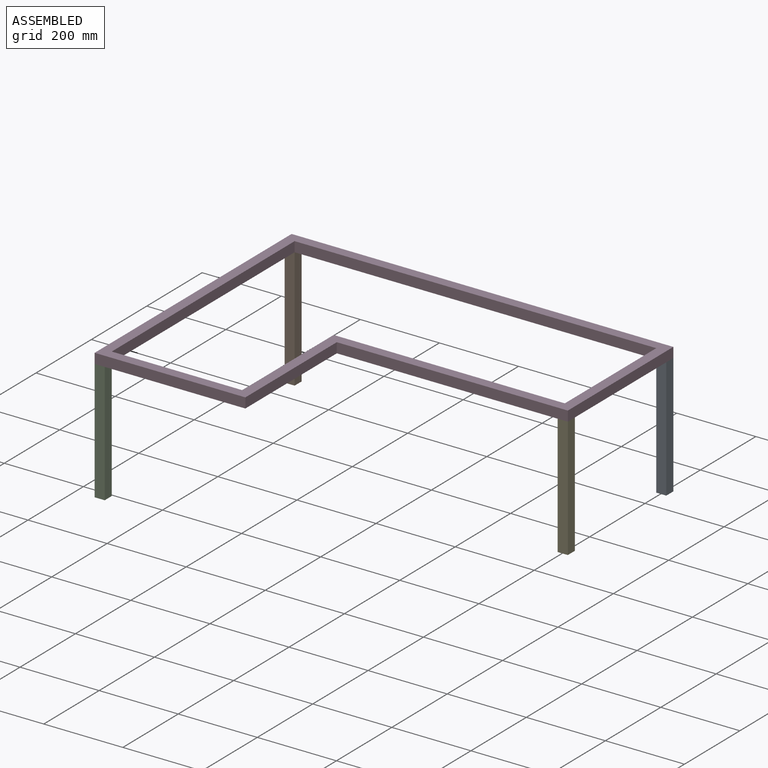
[diagram: assembled view]
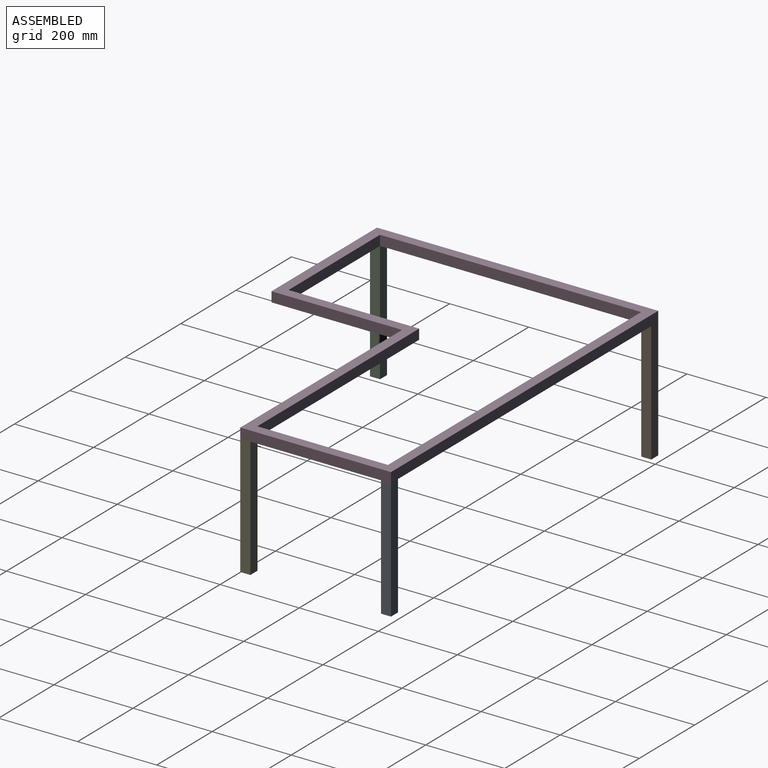
[diagram: assembled view, second angle]
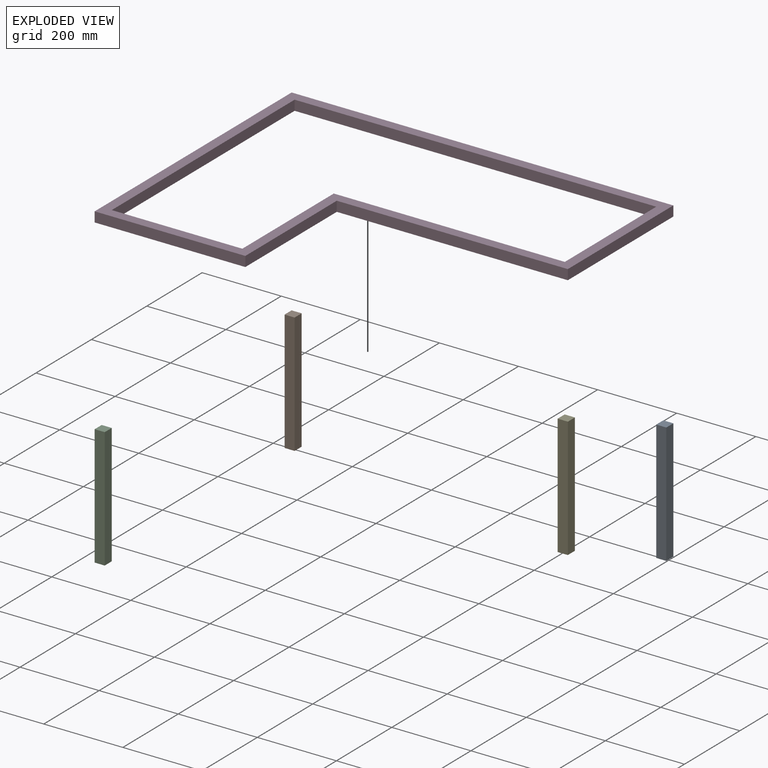
[diagram: exploded view]
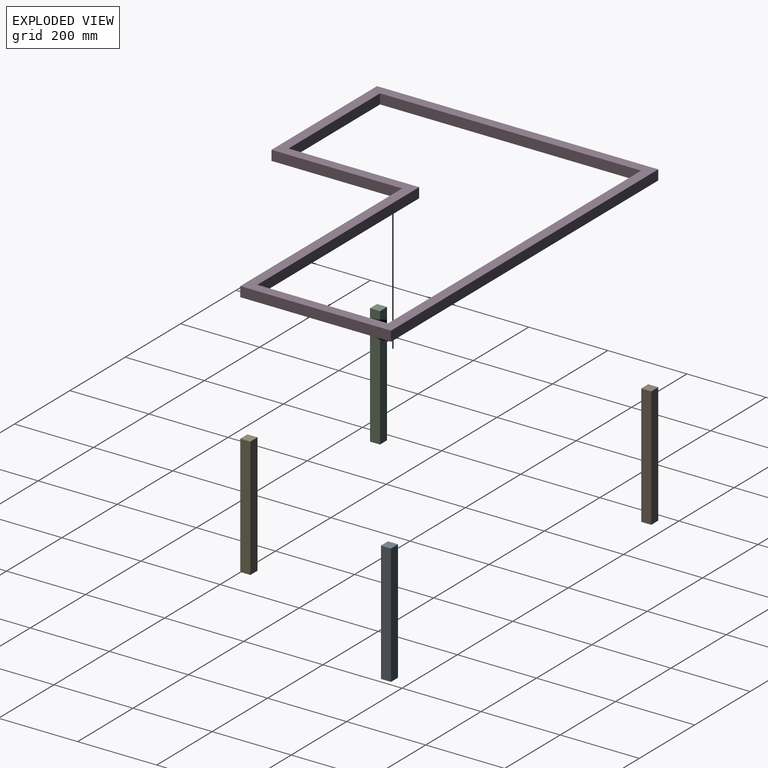
[diagram: exploded view, second angle]
ASSEMBLY  parts=5 mates=4
PART A: 6 faces, bbox 25.4x25.4x304.8 mm
  f0: plane 25.4x25.4mm, normal (0,0,1), area 645.2mm2, adj f1,f3,f4,f5
  f1: plane 304.8x25.4mm, normal (-1,0,0), area 7741.9mm2, adj f0,f2,f4,f5
  f2: plane 25.4x25.4mm, normal (0,0,-1), area 645.2mm2, adj f1,f3,f4,f5
  f3: plane 304.8x25.4mm, normal (1,0,0), area 7741.9mm2, adj f0,f2,f4,f5
  f4: plane 304.8x25.4mm, normal (0,-1,0), area 7741.9mm2, adj f0,f1,f2,f3
  f5: plane 304.8x25.4mm, normal (0,1,0), area 7741.9mm2, adj f0,f1,f2,f3
PART B: 6 faces, bbox 25.4x25.4x304.8 mm
  f0: plane 25.4x25.4mm, normal (0,0,1), area 645.2mm2, adj f1,f3,f4,f5
  f1: plane 304.8x25.4mm, normal (-1,0,0), area 7741.9mm2, adj f0,f2,f4,f5
  f2: plane 25.4x25.4mm, normal (0,0,-1), area 645.2mm2, adj f1,f3,f4,f5
  f3: plane 304.8x25.4mm, normal (1,0,0), area 7741.9mm2, adj f0,f2,f4,f5
  f4: plane 304.8x25.4mm, normal (0,-1,0), area 7741.9mm2, adj f0,f1,f2,f3
  f5: plane 304.8x25.4mm, normal (0,1,0), area 7741.9mm2, adj f0,f1,f2,f3
PART C: same geometry as B
PART D: 14 faces, bbox 965.2x711.2x25.4 mm
  f0: plane 711.2x25.4mm, normal (-1,0,0), area 18064.5mm2, adj f1,f11,f12,f13
  f1: plane 381x25.4mm, normal (0,-1,0), area 9677.4mm2, adj f0,f2,f12,f13
  f2: plane 330.2x25.4mm, normal (1,0,0), area 8387.1mm2, adj f1,f3,f12,f13
  f3: plane 584.2x25.4mm, normal (0,-1,0), area 14838.7mm2, adj f2,f4,f12,f13
  f4: plane 381x25.4mm, normal (1,0,0), area 9677.4mm2, adj f3,f11,f12,f13
  f5: plane 660.4x25.4mm, normal (1,0,0), area 16774.2mm2, adj f6,f10,f12,f13
  f6: plane 914.4x25.4mm, normal (0,-1,0), area 23225.8mm2, adj f5,f7,f12,f13
  f7: plane 330.2x25.4mm, normal (-1,0,0), area 8387.1mm2, adj f6,f8,f12,f13
  f8: plane 584.2x25.4mm, normal (0,1,0), area 14838.7mm2, adj f7,f9,f12,f13
  f9: plane 330.2x25.4mm, normal (-1,0,0), area 8387.1mm2, adj f8,f10,f12,f13
  f10: plane 330.2x25.4mm, normal (0,1,0), area 8387.1mm2, adj f5,f9,f12,f13
  f11: plane 965.2x25.4mm, normal (0,1,0), area 24516.1mm2, adj f0,f4,f12,f13
  f12: plane 965.2x711.2mm, normal (0,0,1), area 82580.5mm2, adj f0,f1,f2,f3,f4,f5,f6,f7
  f13: plane 965.2x711.2mm, normal (0,0,-1), area 82580.5mm2, adj f0,f1,f2,f3,f4,f5,f6,f7
PART E: 6 faces, bbox 25.8x25.4x304.8 mm
  f0: plane 25.8x25.4mm, normal (0,0,1), area 655.3mm2, adj f1,f3,f4,f5
  f1: plane 304.8x25.4mm, normal (-1,0,0), area 7741.9mm2, adj f0,f2,f4,f5
  f2: plane 25.8x25.4mm, normal (0,0,-1), area 655.3mm2, adj f1,f3,f4,f5
  f3: plane 304.8x25.4mm, normal (1,0,0), area 7741.9mm2, adj f0,f2,f4,f5
  f4: plane 304.8x25.8mm, normal (0,1,0), area 7863.3mm2, adj f0,f1,f2,f3
  f5: plane 304.8x25.8mm, normal (0,-1,0), area 7863.3mm2, adj f0,f1,f2,f3
PLACE A t=(55.67,-13.12,395.38)mm
PLACE B t=(55.68,-13.12,395.38)mm
PLACE C t=(55.68,-698.92,395.38)mm
PLACE D t=(55.68,-13.12,395.38)mm
PLACE E t=(55.46,-13.12,395.38)mm
MATE fastened C.f0 <-> D.f13  axis (0,0,1) through (55.68,-724.32,395.38)mm
MATE fastened E.f0 <-> D.f13  axis (0,0,1) through (1020.88,-394.12,395.38)mm
MATE fastened B.f0 <-> D.f13  axis (0,0,1) through (55.68,-13.12,395.38)mm
MATE fastened A.f0 <-> D.f13  axis (0,0,1) through (1020.88,-13.12,395.38)mm
